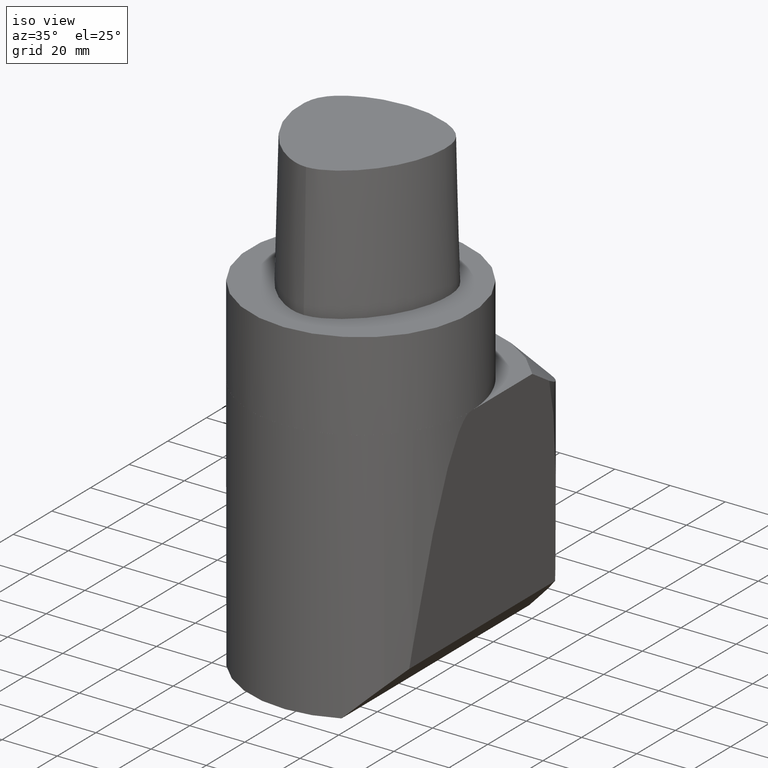
[diagram: clean part render]
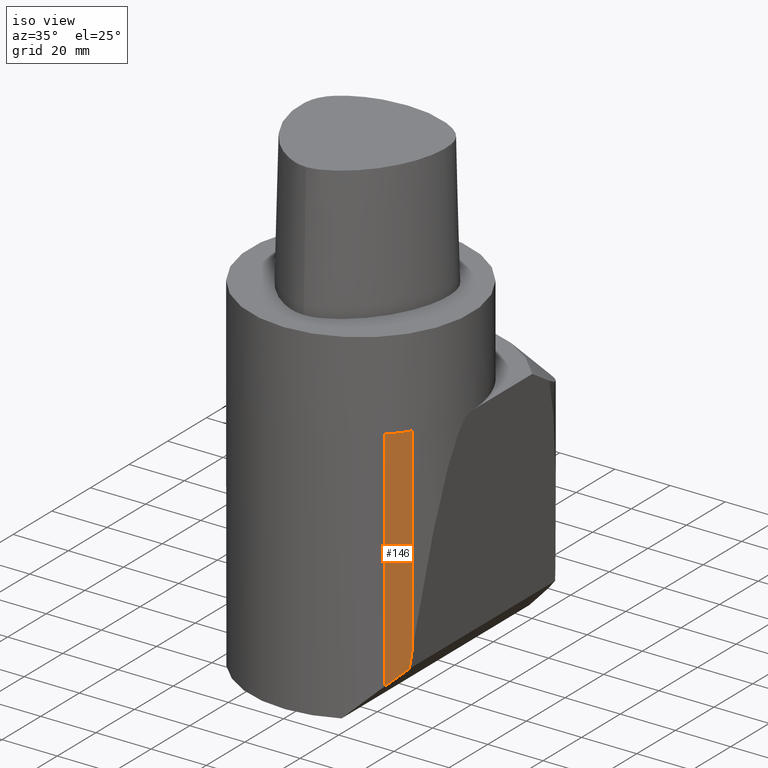
[diagram: same view with one face highlighted and labeled with its STEP entity id]
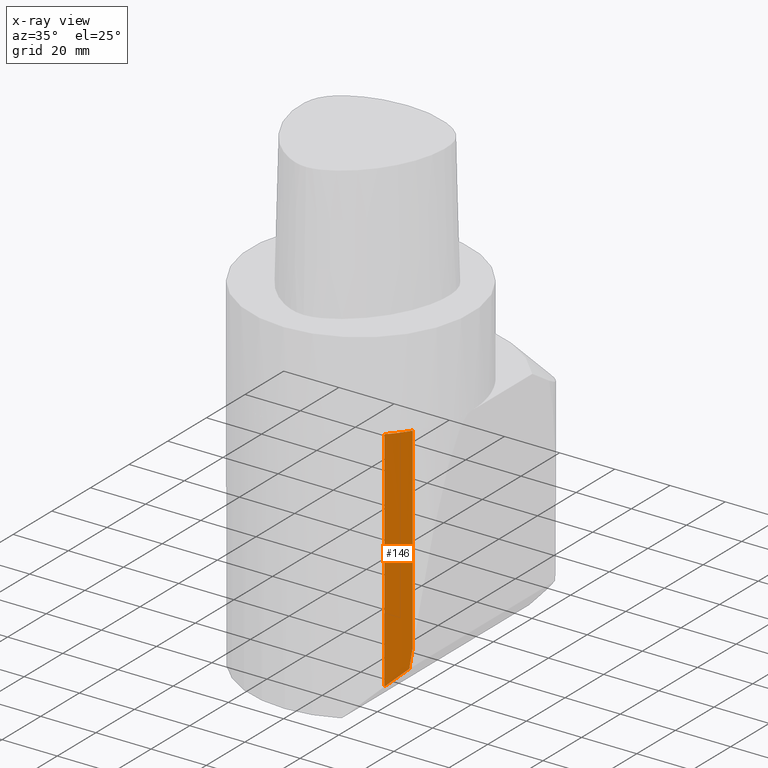
[diagram: x-ray of the same camera — body ghosted, the highlighted face saturated]
A machine part, iso view. The second image highlights one B-rep face of the part: STEP entity #146.
The next image is the same camera in x-ray: the body ghosted, the highlighted face saturated — about 0% of this face is hidden behind the body in this view.
In plain terms, the highlighted face is a freeform B-spline surface patch.
Its self-contained STEP definition (entity closure, byte-faithful):
#138=EDGE_CURVE('240[2]',#358,#359,#360,.T.);
#146=ADVANCED_FACE('240[2]',(#370),#371,.F.);
#148=EDGE_CURVE('240[2]',#330,#359,#373,.T.);
#174=EDGE_CURVE('240[2]',#330,#411,#412,.T.);
#178=EDGE_CURVE('240[2]',#414,#411,#417,.T.);
#233=EDGE_CURVE('240[2]',#414,#358,#485,.T.);
#330=VERTEX_POINT('',#643);
#358=VERTEX_POINT('',#703);
#359=VERTEX_POINT('',#704);
#360=B_SPLINE_CURVE_WITH_KNOTS('',3,(#705,#706,#707,#708,#709,#710,#711,#712,#713,#714,#715,#716,#717,#718),.UNSPECIFIED.,.F.,.F.,(4,2,2,2,2,2,4),(-0.999999999999757,-0.936706999924182,-0.674093576426971,-0.411480152929759,-0.148866729432548,-0.0175600176839423,-2.53057905232647E-013),.UNSPECIFIED.);
#370=FACE_OUTER_BOUND('',#736,.T.);
#371=B_SPLINE_SURFACE_WITH_KNOTS('',3,1,((#737,#738,#739),(#740,#741,#742),(#743,#744,#745),(#746,#747,#748),(#749,#750,#751),(#752,#753,#754),(#755,#756,#757),(#758,#759,#760),(#761,#762,#763),(#764,#765,#766),(#767,#768,#769),(#770,#771,#772),(#773,#774,#775),(#776,#777,#778),(#779,#780,#781),(#782,#783,#784),(#785,#786,#787),(#788,#789,#790),(#791,#792,#793),(#794,#795,#796)),.UNSPECIFIED.,.F.,.F.,.F.,(4,3,2,2,2,2,2,3,4),(2,1,2),(-63.274689869702,0.0,0.0175600176839423,0.148866729432548,0.411480152929759,0.674093576426971,0.936706999924182,1.0,13.1943162783514),(-25.3356262654533,111.18791682274,236.18791682274),.UNSPECIFIED.);
#373=LINE('',#799,#800);
#411=VERTEX_POINT('',#859);
#412=B_SPLINE_CURVE_WITH_KNOTS('',3,(#860,#861,#862,#863,#864,#865,#866,#867),.UNSPECIFIED.,.F.,.F.,(4,2,2,4),(-119.668672956783,-119.588211277068,-118.109010464671,-117.606860730742),.UNSPECIFIED.);
#414=VERTEX_POINT('',#870);
#417=B_SPLINE_CURVE_WITH_KNOTS('',3,(#874,#875,#876,#877,#878,#879,#880,#881),.UNSPECIFIED.,.F.,.F.,(4,2,2,4),(182.745728297254,183.936771665328,185.787715841536,186.29989633861),.UNSPECIFIED.);
#485=LINE('',#1447,#1448);
#643=CARTESIAN_POINT('',(33.7969778634041,-21.3954267847245,-102.900866511767));
#703=CARTESIAN_POINT('',(28.2905413646907,-28.2779997399503,-32.0000000000016));
#704=CARTESIAN_POINT('',(33.7969778634041,-21.3954267847245,-32.0000000000017));
#705=CARTESIAN_POINT('',(28.29054136469,-28.277999739951,-32.0000000000016));
#706=CARTESIAN_POINT('',(28.4730655503268,-28.0953946026959,-32.0000000000016));
#707=CARTESIAN_POINT('',(28.6506267037283,-27.9142167520785,-32.0000000000016));
#708=CARTESIAN_POINT('',(29.5389592417333,-26.9910292634445,-32.0000000000016));
#709=CARTESIAN_POINT('',(30.2217694003244,-26.2215750208795,-32.0000000000016));
#710=CARTESIAN_POINT('',(31.447934505811,-24.7376991117969,-32.0000000000016));
#711=CARTESIAN_POINT('',(31.991754842178,-24.0233159523287,-32.0000000000016));
#712=CARTESIAN_POINT('',(32.8920078719621,-22.7751598354021,-32.0000000000016));
#713=CARTESIAN_POINT('',(33.2492169109592,-22.2416130067496,-32.0000000000016));
#714=CARTESIAN_POINT('',(33.6157367939555,-21.6802256330895,-32.0000000000016));
#715=CARTESIAN_POINT('',(33.7097436643099,-21.5329328249091,-32.0000000000016));
#716=CARTESIAN_POINT('',(33.7816577044912,-21.4196137539597,-32.0000000000016));
#717=CARTESIAN_POINT('',(33.7895939025726,-21.407090752135,-32.0000000000016));
#718=CARTESIAN_POINT('',(33.796977863404,-21.3954267847242,-32.0000000000016));
#736=EDGE_LOOP('',(#1709,#1710,#1711,#1712,#1713));
#737=CARTESIAN_POINT('',(113.617711536878,104.692245879232,-261.523543088197));
#738=CARTESIAN_POINT('',(113.617711536878,104.692245879232,-125.000000000003));
#739=CARTESIAN_POINT('',(113.617711536878,104.692245879232,-2.72848410531878E-012));
#740=CARTESIAN_POINT('',(87.0108003123868,62.663021657913,-261.523543088197));
#741=CARTESIAN_POINT('',(87.0108003123868,62.663021657913,-125.000000000003));
#742=CARTESIAN_POINT('',(87.0108003123868,62.663021657913,-2.72848410531878E-012));
#743=CARTESIAN_POINT('',(60.4038890878954,20.6337974365944,-261.523543088197));
#744=CARTESIAN_POINT('',(60.4038890878954,20.6337974365944,-125.000000000003));
#745=CARTESIAN_POINT('',(60.4038890878954,20.6337974365944,-2.72848410531878E-012));
#746=CARTESIAN_POINT('',(33.796977863404,-21.3954267847242,-261.523543088197));
#747=CARTESIAN_POINT('',(33.796977863404,-21.3954267847242,-125.000000000003));
#748=CARTESIAN_POINT('',(33.796977863404,-21.3954267847242,-2.72848410531878E-012));
#749=CARTESIAN_POINT('',(33.7895939025726,-21.407090752135,-261.523543088197));
#750=CARTESIAN_POINT('',(33.7895939025726,-21.407090752135,-125.000000000003));
#751=CARTESIAN_POINT('',(33.7895939025726,-21.407090752135,-2.72848410531878E-012));
#752=CARTESIAN_POINT('',(33.7816577044912,-21.4196137539597,-261.523543088197));
#753=CARTESIAN_POINT('',(33.7816577044912,-21.4196137539597,-125.000000000003));
#754=CARTESIAN_POINT('',(33.7816577044912,-21.4196137539597,-2.72848410531878E-012));
#755=CARTESIAN_POINT('',(33.7097436643099,-21.5329328249091,-261.523543088197));
#756=CARTESIAN_POINT('',(33.7097436643099,-21.5329328249091,-125.000000000003));
#757=CARTESIAN_POINT('',(33.7097436643099,-21.5329328249091,-2.72848410531878E-012));
#758=CARTESIAN_POINT('',(33.6157367939555,-21.6802256330895,-261.523543088197));
#759=CARTESIAN_POINT('',(33.6157367939555,-21.6802256330895,-125.000000000003));
#760=CARTESIAN_POINT('',(33.6157367939555,-21.6802256330895,-2.72848410531878E-012));
#761=CARTESIAN_POINT('',(33.2492169109592,-22.2416130067496,-261.523543088197));
#762=CARTESIAN_POINT('',(33.2492169109592,-22.2416130067496,-125.000000000003));
#763=CARTESIAN_POINT('',(33.2492169109592,-22.2416130067496,-2.72848410531878E-012));
#764=CARTESIAN_POINT('',(32.8920078719621,-22.7751598354021,-261.523543088197));
#765=CARTESIAN_POINT('',(32.8920078719621,-22.7751598354021,-125.000000000003));
#766=CARTESIAN_POINT('',(32.8920078719621,-22.7751598354021,-2.72848410531878E-012));
#767=CARTESIAN_POINT('',(31.991754842178,-24.0233159523287,-261.523543088197));
#768=CARTESIAN_POINT('',(31.991754842178,-24.0233159523287,-125.000000000003));
#769=CARTESIAN_POINT('',(31.991754842178,-24.0233159523287,-2.72848410531878E-012));
#770=CARTESIAN_POINT('',(31.447934505811,-24.7376991117969,-261.523543088197));
#771=CARTESIAN_POINT('',(31.447934505811,-24.7376991117969,-125.000000000003));
#772=CARTESIAN_POINT('',(31.447934505811,-24.7376991117969,-2.72848410531878E-012));
#773=CARTESIAN_POINT('',(30.2217694003244,-26.2215750208795,-261.523543088197));
#774=CARTESIAN_POINT('',(30.2217694003244,-26.2215750208795,-125.000000000003));
#775=CARTESIAN_POINT('',(30.2217694003244,-26.2215750208795,-2.72848410531878E-012));
#776=CARTESIAN_POINT('',(29.5389592417333,-26.9910292634445,-261.523543088197));
#777=CARTESIAN_POINT('',(29.5389592417333,-26.9910292634445,-125.000000000003));
#778=CARTESIAN_POINT('',(29.5389592417333,-26.9910292634445,-2.72848410531878E-012));
#779=CARTESIAN_POINT('',(28.6506267037283,-27.9142167520785,-261.523543088197));
#780=CARTESIAN_POINT('',(28.6506267037283,-27.9142167520785,-125.000000000003));
#781=CARTESIAN_POINT('',(28.6506267037283,-27.9142167520785,-2.72848410531878E-012));
#782=CARTESIAN_POINT('',(28.4730655503268,-28.0953946026959,-261.523543088197));
#783=CARTESIAN_POINT('',(28.4730655503268,-28.0953946026959,-125.000000000003));
#784=CARTESIAN_POINT('',(28.4730655503268,-28.0953946026959,-2.72848410531878E-012));
#785=CARTESIAN_POINT('',(28.29054136469,-28.277999739951,-261.523543088197));
#786=CARTESIAN_POINT('',(28.29054136469,-28.277999739951,-125.000000000003));
#787=CARTESIAN_POINT('',(28.29054136469,-28.277999739951,-2.72848410531878E-012));
#788=CARTESIAN_POINT('',(-6.8753955546765,-63.4595331650224,-261.523543088197));
#789=CARTESIAN_POINT('',(-6.8753955546765,-63.4595331650224,-125.000000000003));
#790=CARTESIAN_POINT('',(-6.8753955546765,-63.4595331650224,-2.72848410531878E-012));
#791=CARTESIAN_POINT('',(-42.041332474043,-98.6410665900939,-261.523543088197));
#792=CARTESIAN_POINT('',(-42.041332474043,-98.6410665900939,-125.000000000003));
#793=CARTESIAN_POINT('',(-42.041332474043,-98.6410665900939,-2.72848410531878E-012));
#794=CARTESIAN_POINT('',(-77.2072693934095,-133.822600015165,-261.523543088197));
#795=CARTESIAN_POINT('',(-77.2072693934095,-133.822600015165,-125.000000000003));
#796=CARTESIAN_POINT('',(-77.2072693934095,-133.822600015165,-2.72848410531878E-012));
#799=CARTESIAN_POINT('',(33.7969778634041,-21.3954267847245,-125.000000000003));
#800=VECTOR('',#1714,1.0);
#859=CARTESIAN_POINT('',(33.1927473655551,-22.3213156473373,-109.807252613163));
#860=CARTESIAN_POINT('',(33.7969778634041,-21.3954267847245,-102.900866511767));
#861=CARTESIAN_POINT('',(33.788380233926,-21.409007906338,-102.999137865072));
#862=CARTESIAN_POINT('',(33.7797823869385,-21.4225709206004,-103.097411704522));
#863=CARTESIAN_POINT('',(33.6131185034627,-21.6851462565869,-105.002388584272));
#864=CARTESIAN_POINT('',(33.4790192775203,-21.8911254469322,-106.535149730197));
#865=CARTESIAN_POINT('',(33.289061934054,-22.1776003632486,-108.706372072407));
#866=CARTESIAN_POINT('',(33.2409124319313,-22.2496970748971,-109.256723392645));
#867=CARTESIAN_POINT('',(33.1927473655551,-22.3213156473373,-109.807252613163));
#870=CARTESIAN_POINT('',(28.2905413646907,-28.2779997399503,-114.709458599246));
#874=CARTESIAN_POINT('',(28.2905413646907,-28.2779997399503,-114.709458599246));
#875=CARTESIAN_POINT('',(28.5598027757183,-28.0086189083271,-114.440197189031));
#876=CARTESIAN_POINT('',(29.0604000396918,-27.5020726044087,-113.939599927107));
#877=CARTESIAN_POINT('',(30.6684296191253,-25.7204981679521,-112.331570352522));
#878=CARTESIAN_POINT('',(31.5961979475133,-24.5753728153209,-111.403802026395));
#879=CARTESIAN_POINT('',(32.7185357376522,-23.0145741105321,-110.28146423964));
#880=CARTESIAN_POINT('',(32.9580480758712,-22.6702994512538,-110.041951902139));
#881=CARTESIAN_POINT('',(33.1927473655551,-22.3213156473373,-109.807252613163));
#1447=CARTESIAN_POINT('',(28.2905413646907,-28.2779997399503,-125.000000000003));
#1448=VECTOR('',#1836,1.0);
#1709=ORIENTED_EDGE('',*,*,#148,.T.);
#1710=ORIENTED_EDGE('',*,*,#138,.F.);
#1711=ORIENTED_EDGE('',*,*,#233,.F.);
#1712=ORIENTED_EDGE('',*,*,#178,.T.);
#1713=ORIENTED_EDGE('',*,*,#174,.F.);
#1714=DIRECTION('',(-6.12323399573677E-017,-1.22464679914735E-016,1.0));
#1836=DIRECTION('',(-6.12323399573677E-017,-1.22464679914735E-016,1.0));